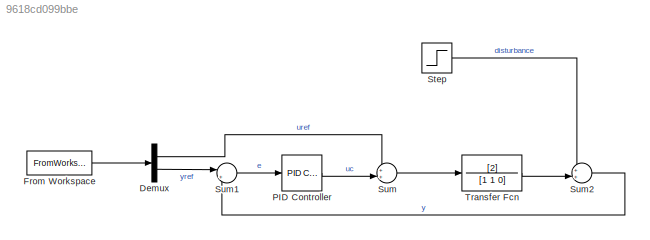
MODEL slx_9618cd099bbe
KIND model
CONFIG AbsTol = auto
CONFIG EnableMultiTasking = off
CONFIG FixedStep = auto
CONFIG MaxStep = auto
CONFIG MinStep = auto
CONFIG RelTol = 1e-3
CONFIG SampleTimeConstraint = Unconstrained
CONFIG SolverName = VariableStepAuto
CONFIG StartTime = 0.0
CONFIG StopTime = 10.0
BLOCK [Demux] Demux
  Outputs = 2
BLOCK [FromWorkspace] From Workspace
  VariableName = simin
BLOCK [Reference] PID Controller  REF=slpidlib/PID Controller
  LibrarySourceBlock = simulink/Continuous/PID Controller
  SourceBlock = slpidlib/PID Controller
  SourceType = PID 1dof
BLOCK [Step] Step
  After = 0.1
  SampleTime = 0
  Time = 5
BLOCK [Sum] Sum
  Inputs = ++|
BLOCK [Sum] Sum1
  Inputs = |+-
BLOCK [Sum] Sum2
  Inputs = ++|
BLOCK [TransferFcn] Transfer Fcn
  Denominator = [1 1 0]
  Numerator = [2]
LINE Demux:1 -> Sum:1
LINE Demux:2 -> Sum1:1
LINE From Workspace:1 -> Demux:1
LINE PID Controller:1 -> Sum:2
LINE Step:1 -> Sum2:1
LINE Sum1:1 -> PID Controller:1
LINE Sum2:1 -> Sum1:2
LINE Sum:1 -> Transfer Fcn:1
LINE Transfer Fcn:1 -> Sum2:2
